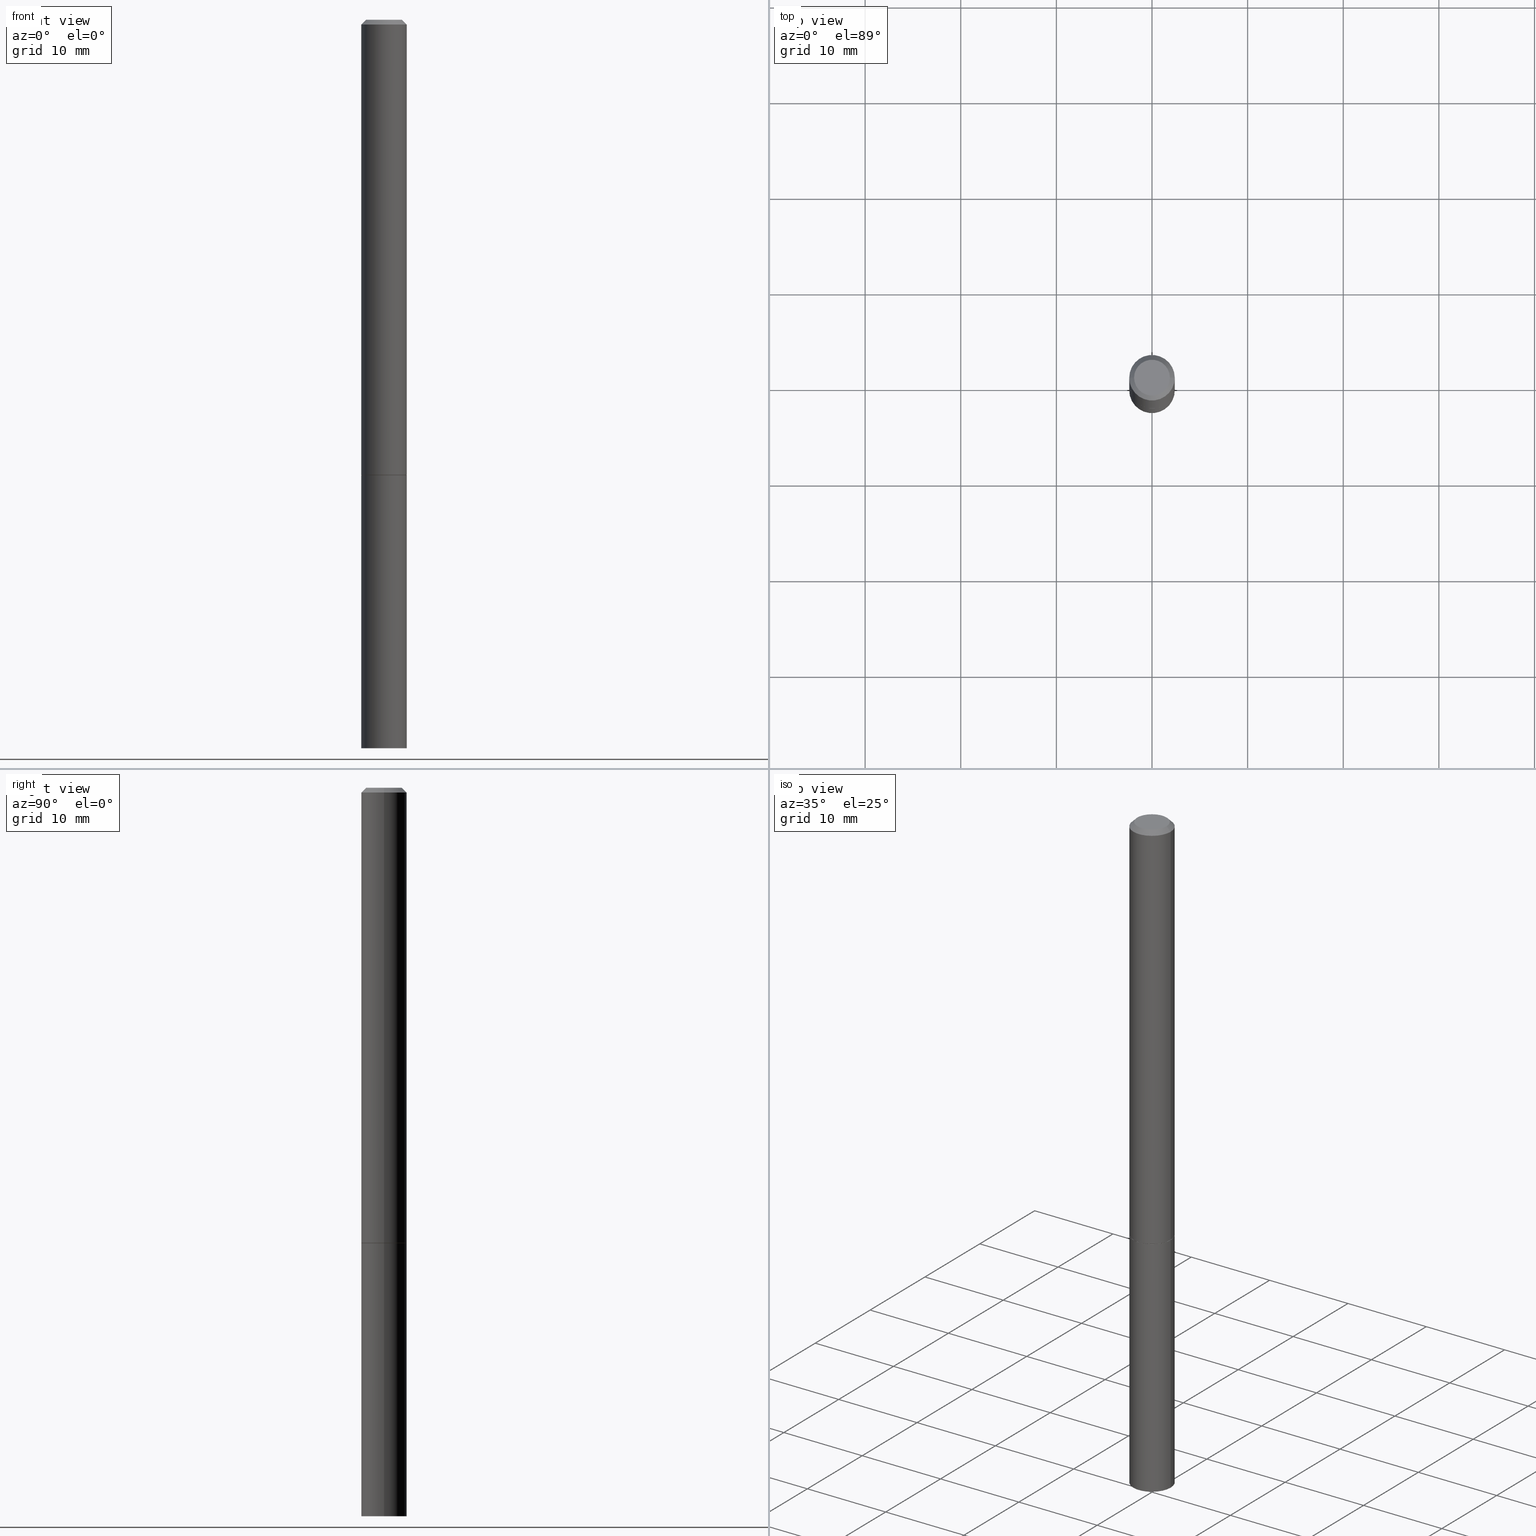
[diagram: canonical four-view strip — front | top / right | iso, engineering-drawing reading convention]
A machine part, canonical four-view strip (front | top / right | iso — engineering-drawing reading convention). The complete STEP part file that produces these views, byte-faithful:
ISO-10303-21;
HEADER;
FILE_DESCRIPTION (( 'STEP AP203' ),
    '1' );
FILE_NAME ('70473.STEP',
    '2024-02-29T02:29:18',
    ( '' ),
    ( '' ),
    'SwSTEP 2.0',
    'SolidWorks 2023',
    '' );
FILE_SCHEMA (( 'CONFIG_CONTROL_DESIGN' ));
ENDSEC;

DATA;
#1 = CARTESIAN_POINT ( 'NONE',  ( 4.890937612370274910E-31, -6.982962677686295307E-17, -0.02000000000000000736 ) ) ;
#2 = AXIS2_PLACEMENT_3D ( 'NONE', #209, #179, #328 ) ;
#3 = CARTESIAN_POINT ( 'NONE',  ( 0.000000000000000000, 0.000000000000000000, 0.000000000000000000 ) ) ;
#4 = CARTESIAN_POINT ( 'NONE',  ( 0.09274999999999998523, -7.194197298686297830E-15, -1.874999999999999778 ) ) ;
#5 = LINE ( 'NONE', #120, #324 ) ;
#6 = ORIENTED_EDGE ( 'NONE', *, *, #94, .T. ) ;
#7 = DATE_AND_TIME ( #190, #330 ) ;
#8 = PERSON ( 'UNSPECIFIED', 'UNSPECIFIED', 'UNSPECIFIED', ('UNSPECIFIED'), ('UNSPECIFIED'), ('UNSPECIFIED') ) ;
#9 = ORIENTED_EDGE ( 'NONE', *, *, #305, .F. ) ;
#10 = ORIENTED_EDGE ( 'NONE', *, *, #285, .F. ) ;
#11 = COORDINATED_UNIVERSAL_TIME_OFFSET ( 5, 0, .BEHIND. ) ;
#12 = ORIENTED_EDGE ( 'NONE', *, *, #60, .T. ) ;
#13 = PRODUCT ( '70473', '70473', '', ( #58 ) ) ;
#14 = VECTOR ( 'NONE', #228, 39.37007874015748143 ) ;
#15 = PRODUCT_RELATED_PRODUCT_CATEGORY ( 'detail', '', ( #13 ) ) ;
#16 = CARTESIAN_POINT ( 'NONE',  ( 4.585254011597131119E-29, -6.546527510330898707E-15, -1.875000000000000000 ) ) ;
#17 = DIRECTION ( 'NONE',  ( 1.000000000000000000, -6.982962677686265922E-15, 4.876176775795935793E-29 ) ) ;
#18 = CARTESIAN_POINT ( 'NONE',  ( 7.336406418555409790E-29, -1.047444401652943635E-14, -3.000000000000000444 ) ) ;
#19 = CIRCLE ( 'NONE', #196, 0.09375000000000001388 ) ;
#20 = CALENDAR_DATE ( 2024, 28, 2 ) ;
#21 =( LENGTH_UNIT ( ) NAMED_UNIT ( * ) SI_UNIT ( $, .METRE. ) );
#22 = DATE_AND_TIME ( #20, #256 ) ;
#23 = CALENDAR_DATE ( 2024, 28, 2 ) ;
#24 = CIRCLE ( 'NONE', #348, 0.09375000000000001388 ) ;
#25 = PRODUCT_DEFINITION_FORMATION_WITH_SPECIFIED_SOURCE ( 'ANY', '', #13, .NOT_KNOWN. ) ;
#26 = CARTESIAN_POINT ( 'NONE',  ( 4.582808542790945516E-29, -6.543036028992054911E-15, -1.874000000000000110 ) ) ;
#27 = COORDINATED_UNIVERSAL_TIME_OFFSET ( 5, 0, .BEHIND. ) ;
#28 = DIRECTION ( 'NONE',  ( -2.445468806185136597E-29, 3.491481338843145583E-15, 1.000000000000000000 ) ) ;
#29 = DIRECTION ( 'NONE',  ( 0.7071067811866259545, -2.468850131083078659E-15, 0.7071067811864690800 ) ) ;
#30 = AXIS2_PLACEMENT_3D ( 'NONE', #165, #198, #313 ) ;
#31 = DIRECTION ( 'NONE',  ( -2.445468806185136597E-29, 3.491481338843145583E-15, 1.000000000000000000 ) ) ;
#32 = CARTESIAN_POINT ( 'NONE',  ( -0.09375000000000001388, -7.844351948655072817E-15, -3.000000000000000444 ) ) ;
#33 = CC_DESIGN_PERSON_AND_ORGANIZATION_ASSIGNMENT ( #334, #249, ( #63 ) ) ;
#34 = ORIENTED_EDGE ( 'NONE', *, *, #178, .F. ) ;
#35 = PLANE ( 'NONE',  #242 ) ;
#36 = ORIENTED_EDGE ( 'NONE', *, *, #118, .F. ) ;
#37 = CIRCLE ( 'NONE', #272, 0.07374999999999982958 ) ;
#38 = ORIENTED_EDGE ( 'NONE', *, *, #178, .T. ) ;
#39 = DATE_AND_TIME ( #119, #338 ) ;
#40 = ORIENTED_EDGE ( 'NONE', *, *, #94, .F. ) ;
#41 = ADVANCED_FACE ( 'NONE', ( #358 ), #81, .F. ) ;
#42 = ORIENTED_EDGE ( 'NONE', *, *, #144, .F. ) ;
#43 = CC_DESIGN_APPROVAL ( #71, ( #25 ) ) ;
#44 = CARTESIAN_POINT ( 'NONE',  ( -0.09374999999999979183, 5.848231242562231212E-16, -0.02000000000000000736 ) ) ;
#45 = PERSON_AND_ORGANIZATION_ROLE ( 'creator' ) ;
#46 = CYLINDRICAL_SURFACE ( 'NONE', #265, 0.09375000000000001388 ) ;
#47 = APPROVAL_ROLE ( '' ) ;
#48 = DIRECTION ( 'NONE',  ( -2.445468806185136597E-29, 3.491481338843145583E-15, 1.000000000000000000 ) ) ;
#49 = PERSON_AND_ORGANIZATION ( #8, #85 ) ;
#50 = ORIENTED_EDGE ( 'NONE', *, *, #126, .F. ) ;
#51 = CONICAL_SURFACE ( 'NONE', #171, 0.09274999999999998523, 0.7853981633975591903 ) ;
#52 = PERSON_AND_ORGANIZATION ( #8, #85 ) ;
#53 = DIRECTION ( 'NONE',  ( 2.438088387897960049E-29, -3.491481338843145188E-15, -1.000000000000000000 ) ) ;
#54 = CARTESIAN_POINT ( 'NONE',  ( 4.585254011597130558E-29, -6.546527510330897918E-15, -1.874999999999999778 ) ) ;
#55 = APPROVAL_DATE_TIME ( #191, #71 ) ;
#56 = DIRECTION ( 'NONE',  ( 1.000000000000000000, -6.982962677686266711E-15, 4.875869617646596737E-29 ) ) ;
#57 = ADVANCED_FACE ( 'NONE', ( #276 ), #185, .F. ) ;
#58 = MECHANICAL_CONTEXT ( 'NONE', #166, 'mechanical' ) ;
#59 = LOCAL_TIME ( 21, 29, 18.00000000000000000, #90 ) ;
#60 = EDGE_CURVE ( 'NONE', #327, #332, #248, .T. ) ;
#61 = CARTESIAN_POINT ( 'NONE',  ( -1.043851414335219820E-46, 1.490343170380447200E-32, 4.268512490100411279E-18 ) ) ;
#62 = CIRCLE ( 'NONE', #161, 0.09375000000000001388 ) ;
#63 = SECURITY_CLASSIFICATION ( '', '', #273 ) ;
#64 = PRODUCT_DEFINITION ( 'UNKNOWN', '', #25, #195 ) ;
#65 = ORIENTED_EDGE ( 'NONE', *, *, #207, .F. ) ;
#66 = CYLINDRICAL_SURFACE ( 'NONE', #299, 0.09375000000000001388 ) ;
#67 = EDGE_LOOP ( 'NONE', ( #50, #262, #322, #34 ) ) ;
#68 = VERTEX_POINT ( 'NONE', #108 ) ;
#69 = PERSON_AND_ORGANIZATION ( #8, #85 ) ;
#70 = AXIS2_PLACEMENT_3D ( 'NONE', #172, #205, #139 ) ;
#71 = APPROVAL ( #175, 'UNSPECIFIED' ) ;
#72 = ORIENTED_EDGE ( 'NONE', *, *, #118, .T. ) ;
#73 = DIRECTION ( 'NONE',  ( -2.445468806185136597E-29, 3.491481338843145583E-15, 1.000000000000000000 ) ) ;
#74 = CIRCLE ( 'NONE', #270, 0.09375000000000001388 ) ;
#75 = PLANE ( 'NONE',  #96 ) ;
#76 = APPROVAL_ROLE ( '' ) ;
#77 = MANIFOLD_SOLID_BREP ( 'Body-Move/Copy2[1]', #297 ) ;
#78 = LINE ( 'NONE', #44, #240 ) ;
#79 = CARTESIAN_POINT ( 'NONE',  ( -0.09375000000000001388, -2.640299013109360447E-15, -1.874000000000000110 ) ) ;
#80 = PERSON_AND_ORGANIZATION_ROLE ( 'design_owner' ) ;
#81 = PLANE ( 'NONE',  #354 ) ;
#82 = ADVANCED_FACE ( 'NONE', ( #152 ), #51, .T. ) ;
#83 = CONICAL_SURFACE ( 'NONE', #102, 0.09274999999999998523, 0.7853981633975591903 ) ;
#84 = FACE_OUTER_BOUND ( 'NONE', #208, .T. ) ;
#85 = ORGANIZATION ( 'UNSPECIFIED', 'UNSPECIFIED', '' ) ;
#86 = DIRECTION ( 'NONE',  ( -1.000000000000000000, 6.982962677686266711E-15, 0.000000000000000000 ) ) ;
#87 = DIRECTION ( 'NONE',  ( 1.000000000000000000, -6.982962677686262766E-15, 0.000000000000000000 ) ) ;
#88 = CARTESIAN_POINT ( 'NONE',  ( 4.585254011597131119E-29, -6.546527510330898707E-15, -1.875000000000000000 ) ) ;
#89 = ORIENTED_EDGE ( 'NONE', *, *, #144, .T. ) ;
#90 = COORDINATED_UNIVERSAL_TIME_OFFSET ( 5, 0, .BEHIND. ) ;
#91 = LINE ( 'NONE', #103, #14 ) ;
#92 = ORIENTED_EDGE ( 'NONE', *, *, #233, .T. ) ;
#93 = EDGE_LOOP ( 'NONE', ( #261, #92, #89, #347 ) ) ;
#94 = EDGE_CURVE ( 'NONE', #99, #332, #78, .T. ) ;
#95 = EDGE_LOOP ( 'NONE', ( #177, #238, #36, #203 ) ) ;
#96 = AXIS2_PLACEMENT_3D ( 'NONE', #304, #53, #183 ) ;
#97 = AXIS2_PLACEMENT_3D ( 'NONE', #3, #28, #344 ) ;
#98 = ORIENTED_EDGE ( 'NONE', *, *, #247, .T. ) ;
#99 = VERTEX_POINT ( 'NONE', #210 ) ;
#100 = CC_DESIGN_DATE_AND_TIME_ASSIGNMENT ( #39, #227, ( #64 ) ) ;
#101 = DIRECTION ( 'NONE',  ( 1.000000000000000000, -6.982962677686262766E-15, 0.000000000000000000 ) ) ;
#102 = AXIS2_PLACEMENT_3D ( 'NONE', #54, #157, #137 ) ;
#103 = CARTESIAN_POINT ( 'NONE',  ( 0.09375000000000001388, -6.546527510330875041E-16, 4.571415727308690506E-30 ) ) ;
#104 = PERSON_AND_ORGANIZATION ( #8, #85 ) ;
#105 = ORIENTED_EDGE ( 'NONE', *, *, #192, .T. ) ;
#106 = DIRECTION ( 'NONE',  ( 1.000000000000000000, -6.982962677686261189E-15, 0.000000000000000000 ) ) ;
#107 = DATE_TIME_ROLE ( 'classification_date' ) ;
#108 = CARTESIAN_POINT ( 'NONE',  ( -0.09274999999999998523, -5.882200668565182600E-15, -1.874999999999999778 ) ) ;
#109 = DIRECTION ( 'NONE',  ( -2.445468806185136597E-29, 3.491481338843145583E-15, 1.000000000000000000 ) ) ;
#110 = ADVANCED_FACE ( 'NONE', ( #329 ), #75, .T. ) ;
#111 = VERTEX_POINT ( 'NONE', #301 ) ;
#112 = DIRECTION ( 'NONE',  ( -2.445468806185136877E-29, 3.491481338843145188E-15, 1.000000000000000000 ) ) ;
#113 = CIRCLE ( 'NONE', #316, 0.09375000000000001388 ) ;
#114 = PERSON_AND_ORGANIZATION_ROLE ( 'design_supplier' ) ;
#115 = AXIS2_PLACEMENT_3D ( 'NONE', #302, #73, #155 ) ;
#116 = CARTESIAN_POINT ( 'NONE',  ( -0.09374999999999988898, 6.661338147750931354E-16, -4.611501647113968390E-30 ) ) ;
#117 = APPROVAL_PERSON_ORGANIZATION ( #104, #71, #76 ) ;
#118 = EDGE_CURVE ( 'NONE', #362, #174, #24, .T. ) ;
#119 = CALENDAR_DATE ( 2024, 28, 2 ) ;
#120 = CARTESIAN_POINT ( 'NONE',  ( -0.09274999999999998523, -5.887499122913405002E-15, -1.874999999999999778 ) ) ;
#121 = DIRECTION ( 'NONE',  ( -2.445468806185136597E-29, 3.491481338843145583E-15, 1.000000000000000000 ) ) ;
#122 = DIRECTION ( 'NONE',  ( 1.000000000000000000, -6.982962677686265922E-15, 4.876176775795935793E-29 ) ) ;
#123 = ORIENTED_EDGE ( 'NONE', *, *, #285, .T. ) ;
#124 = CARTESIAN_POINT ( 'NONE',  ( -0.09375000000000001388, 6.661338147750940229E-16, -4.611501647113973995E-30 ) ) ;
#125 = EDGE_LOOP ( 'NONE', ( #105, #132 ) ) ;
#126 = EDGE_CURVE ( 'NONE', #319, #174, #253, .T. ) ;
#127 = ORIENTED_EDGE ( 'NONE', *, *, #207, .T. ) ;
#128 = ORIENTED_EDGE ( 'NONE', *, *, #257, .F. ) ;
#129 = CIRCLE ( 'NONE', #317, 0.09274999999999998523 ) ;
#130 = CC_DESIGN_PERSON_AND_ORGANIZATION_ASSIGNMENT ( #277, #80, ( #13 ) ) ;
#131 = PERSON_AND_ORGANIZATION ( #8, #85 ) ;
#132 = ORIENTED_EDGE ( 'NONE', *, *, #274, .T. ) ;
#133 = CIRCLE ( 'NONE', #342, 0.09375000000000001388 ) ;
#134 = UNCERTAINTY_MEASURE_WITH_UNIT (LENGTH_MEASURE( 1.000000000000000082E-05 ), #216, 'distance_accuracy_value', 'NONE');
#135 = EDGE_CURVE ( 'NONE', #332, #327, #234, .T. ) ;
#136 = PERSON_AND_ORGANIZATION_ROLE ( 'creator' ) ;
#137 = DIRECTION ( 'NONE',  ( 1.000000000000000000, -6.982962677686262766E-15, 0.000000000000000000 ) ) ;
#138 = APPROVAL_DATE_TIME ( #303, #266 ) ;
#139 = DIRECTION ( 'NONE',  ( 1.000000000000000000, -6.982962677686266711E-15, 0.000000000000000000 ) ) ;
#140 = AXIS2_PLACEMENT_3D ( 'NONE', #353, #48, #331 ) ;
#141 = AXIS2_PLACEMENT_3D ( 'NONE', #201, #315, #258 ) ;
#142 = DIRECTION ( 'NONE',  ( -2.445468806185136597E-29, 3.491481338843145583E-15, 1.000000000000000000 ) ) ;
#143 = CARTESIAN_POINT ( 'NONE',  ( 0.09375000000000001388, -7.201180261363985422E-15, -1.875000000000000000 ) ) ;
#144 = EDGE_CURVE ( 'NONE', #206, #327, #200, .T. ) ;
#145 = PRODUCT_DEFINITION_SHAPE ( 'NONE', 'NONE',  #64 ) ;
#146 = CYLINDRICAL_SURFACE ( 'NONE', #97, 0.09374999999999988898 ) ;
#147 = DIRECTION ( 'NONE',  ( -2.438088387897960049E-29, 3.491481338843145188E-15, 1.000000000000000000 ) ) ;
#148 = EDGE_LOOP ( 'NONE', ( #295, #230 ) ) ;
#149 = EDGE_LOOP ( 'NONE', ( #9, #123, #267, #318 ) ) ;
#150 = ORIENTED_EDGE ( 'NONE', *, *, #365, .T. ) ;
#151 = EDGE_CURVE ( 'NONE', #337, #362, #91, .T. ) ;
#152 = FACE_OUTER_BOUND ( 'NONE', #149, .T. ) ;
#153 = COORDINATED_UNIVERSAL_TIME_OFFSET ( 5, 0, .BEHIND. ) ;
#154 = LINE ( 'NONE', #250, #289 ) ;
#155 = DIRECTION ( 'NONE',  ( 1.000000000000000000, -6.982962677686266711E-15, 0.000000000000000000 ) ) ;
#156 = CC_DESIGN_PERSON_AND_ORGANIZATION_ASSIGNMENT ( #49, #136, ( #25 ) ) ;
#157 = DIRECTION ( 'NONE',  ( -2.445468806185136597E-29, 3.491481338843145583E-15, 1.000000000000000000 ) ) ;
#158 = PERSON_AND_ORGANIZATION ( #8, #85 ) ;
#159 = DIRECTION ( 'NONE',  ( -1.000000000000000000, 6.982962677686265922E-15, -4.876176775795935793E-29 ) ) ;
#160 = EDGE_CURVE ( 'NONE', #337, #319, #19, .T. ) ;
#161 = AXIS2_PLACEMENT_3D ( 'NONE', #168, #31, #225 ) ;
#162 = APPROVAL_PERSON_ORGANIZATION ( #131, #360, #47 ) ;
#163 = SHAPE_DEFINITION_REPRESENTATION ( #145, #294 ) ;
#164 = DIRECTION ( 'NONE',  ( -2.445468806185136597E-29, 3.491481338843145583E-15, 1.000000000000000000 ) ) ;
#165 = CARTESIAN_POINT ( 'NONE',  ( 4.890937612370274910E-31, -6.982962677686295307E-17, -0.02000000000000000736 ) ) ;
#166 = APPLICATION_CONTEXT ( 'configuration controlled 3d designs of mechanical parts and assemblies' ) ;
#167 = ADVANCED_FACE ( 'NONE', ( #281 ), #180, .T. ) ;
#168 = CARTESIAN_POINT ( 'NONE',  ( 4.585254011597131119E-29, -6.546527510330898707E-15, -1.875000000000000000 ) ) ;
#169 = CARTESIAN_POINT ( 'NONE',  ( -0.09374999999999979183, 5.848231242562231212E-16, -0.02000000000000000736 ) ) ;
#170 = DIMENSIONAL_EXPONENTS ( 1.000000000000000000, 0.000000000000000000, 0.000000000000000000, 0.000000000000000000, 0.000000000000000000, 0.000000000000000000, 0.000000000000000000 ) ;
#171 = AXIS2_PLACEMENT_3D ( 'NONE', #335, #298, #101 ) ;
#172 = CARTESIAN_POINT ( 'NONE',  ( 4.890937612370274910E-31, -6.982962677686295307E-17, -0.02000000000000000736 ) ) ;
#173 = EDGE_LOOP ( 'NONE', ( #232, #235, #65, #128 ) ) ;
#174 = VERTEX_POINT ( 'NONE', #343 ) ;
#175 = APPROVAL_STATUS ( 'not_yet_approved' ) ;
#176 = VECTOR ( 'NONE', #29, 39.37007874015748143 ) ;
#177 = ORIENTED_EDGE ( 'NONE', *, *, #160, .T. ) ;
#178 = EDGE_CURVE ( 'NONE', #174, #362, #62, .T. ) ;
#179 = DIRECTION ( 'NONE',  ( 2.438088387897960049E-29, -3.491481338843145188E-15, -1.000000000000000000 ) ) ;
#180 = CONICAL_SURFACE ( 'NONE', #211, 0.09374999999999979183, 0.7853981633974469467 ) ;
#181 = AXIS2_PLACEMENT_3D ( 'NONE', #246, #213, #364 ) ;
#182 = APPLICATION_PROTOCOL_DEFINITION ( 'international standard', 'config_control_design', 1994, #186 ) ;
#183 = DIRECTION ( 'NONE',  ( -1.000000000000000000, 6.982962677686265922E-15, -4.876176775795935793E-29 ) ) ;
#184 =( NAMED_UNIT ( * ) SI_UNIT ( $, .STERADIAN. ) SOLID_ANGLE_UNIT ( ) );
#185 = PLANE ( 'NONE',  #2 ) ;
#186 = APPLICATION_CONTEXT ( 'configuration controlled 3d designs of mechanical parts and assemblies' ) ;
#187 = DIRECTION ( 'NONE',  ( -0.7071067811865465735, 2.468850131082246805E-15, -0.7071067811865484609 ) ) ;
#188 = FACE_OUTER_BOUND ( 'NONE', #95, .T. ) ;
#189 = VECTOR ( 'NONE', #197, 39.37007874015748143 ) ;
#190 = CALENDAR_DATE ( 2024, 28, 2 ) ;
#191 = DATE_AND_TIME ( #366, #59 ) ;
#192 = EDGE_CURVE ( 'NONE', #99, #350, #222, .T. ) ;
#193 = APPLICATION_PROTOCOL_DEFINITION ( 'international standard', 'config_control_design', 1994, #166 ) ;
#194 = MANIFOLD_SOLID_BREP ( 'Body-Move/Copy2[2]', #323 ) ;
#195 = DESIGN_CONTEXT ( 'detailed design', #186, 'design' ) ;
#196 = AXIS2_PLACEMENT_3D ( 'NONE', #278, #121, #269 ) ;
#197 = DIRECTION ( 'NONE',  ( -2.445468806185136877E-29, 3.491481338843145188E-15, 1.000000000000000000 ) ) ;
#198 = DIRECTION ( 'NONE',  ( 2.445468806185136597E-29, -3.491481338843145583E-15, -1.000000000000000000 ) ) ;
#199 = ADVANCED_FACE ( 'NONE', ( #188 ), #46, .T. ) ;
#200 = LINE ( 'NONE', #293, #189 ) ;
#201 = CARTESIAN_POINT ( 'NONE',  ( 4.585254011597130558E-29, -6.546527510330897918E-15, -1.874999999999999778 ) ) ;
#202 = CC_DESIGN_APPROVAL ( #360, ( #64 ) ) ;
#203 = ORIENTED_EDGE ( 'NONE', *, *, #151, .F. ) ;
#204 = ORIENTED_EDGE ( 'NONE', *, *, #135, .T. ) ;
#205 = DIRECTION ( 'NONE',  ( -2.445468806185136597E-29, 3.491481338843145583E-15, 1.000000000000000000 ) ) ;
#206 = VERTEX_POINT ( 'NONE', #241 ) ;
#207 = EDGE_CURVE ( 'NONE', #206, #218, #113, .T. ) ;
#208 = EDGE_LOOP ( 'NONE', ( #264, #326, #6, #204 ) ) ;
#209 = CARTESIAN_POINT ( 'NONE',  ( 5.149934974793609077E-16, 0.07374999999999982958, -2.553624924946311773E-16 ) ) ;
#210 = CARTESIAN_POINT ( 'NONE',  ( -0.07374999999999982958, 5.499083108677920638E-16, 4.268512490096688071E-18 ) ) ;
#211 = AXIS2_PLACEMENT_3D ( 'NONE', #1, #279, #86 ) ;
#212 = LOCAL_TIME ( 21, 29, 18.00000000000000000, #275 ) ;
#213 = DIRECTION ( 'NONE',  ( 0.000000000000000000, 0.000000000000000000, 1.000000000000000000 ) ) ;
#214 = DIRECTION ( 'NONE',  ( 1.000000000000000000, -6.982962677686261189E-15, 0.000000000000000000 ) ) ;
#215 = CARTESIAN_POINT ( 'NONE',  ( 4.582808542790945516E-29, -6.543036028992054911E-15, -1.874000000000000110 ) ) ;
#216 =( CONVERSION_BASED_UNIT ( 'INCH', #308 ) LENGTH_UNIT ( ) NAMED_UNIT ( #170 ) );
#217 = APPROVAL_ROLE ( '' ) ;
#218 = VERTEX_POINT ( 'NONE', #79 ) ;
#219 = ADVANCED_FACE ( 'NONE', ( #307 ), #83, .T. ) ;
#220 = CARTESIAN_POINT ( 'NONE',  ( 0.000000000000000000, 0.000000000000000000, 0.000000000000000000 ) ) ;
#221 = ADVANCED_FACE ( 'NONE', ( #245 ), #231, .T. ) ;
#222 = CIRCLE ( 'NONE', #229, 0.07374999999999982958 ) ;
#223 = CIRCLE ( 'NONE', #141, 0.09274999999999998523 ) ;
#224 = DIRECTION ( 'NONE',  ( -2.445468806185136877E-29, 3.491481338843145188E-15, 1.000000000000000000 ) ) ;
#225 = DIRECTION ( 'NONE',  ( 1.000000000000000000, -6.982962677686261189E-15, 0.000000000000000000 ) ) ;
#226 = ORIENTED_EDGE ( 'NONE', *, *, #60, .F. ) ;
#227 = DATE_TIME_ROLE ( 'creation_date' ) ;
#228 = DIRECTION ( 'NONE',  ( -2.445468806185136877E-29, 3.491481338843145188E-15, 1.000000000000000000 ) ) ;
#229 = AXIS2_PLACEMENT_3D ( 'NONE', #321, #363, #56 ) ;
#230 = ORIENTED_EDGE ( 'NONE', *, *, #251, .F. ) ;
#231 = CYLINDRICAL_SURFACE ( 'NONE', #140, 0.09374999999999988898 ) ;
#232 = ORIENTED_EDGE ( 'NONE', *, *, #296, .T. ) ;
#233 = EDGE_CURVE ( 'NONE', #218, #206, #74, .T. ) ;
#234 = CIRCLE ( 'NONE', #70, 0.09374999999999979183 ) ;
#235 = ORIENTED_EDGE ( 'NONE', *, *, #305, .T. ) ;
#236 = CC_DESIGN_SECURITY_CLASSIFICATION ( #63, ( #25 ) ) ;
#237 =( NAMED_UNIT ( * ) PLANE_ANGLE_UNIT ( ) SI_UNIT ( $, .RADIAN. ) );
#238 = ORIENTED_EDGE ( 'NONE', *, *, #126, .T. ) ;
#239 = DIRECTION ( 'NONE',  ( -2.445468806185136597E-29, 3.491481338843145583E-15, 1.000000000000000000 ) ) ;
#240 = VECTOR ( 'NONE', #187, 39.37007874015748143 ) ;
#241 = CARTESIAN_POINT ( 'NONE',  ( 0.09375000000000001388, -7.197688780025142415E-15, -1.874000000000000110 ) ) ;
#242 = AXIS2_PLACEMENT_3D ( 'NONE', #88, #147, #260 ) ;
#243 = DIRECTION ( 'NONE',  ( -2.445468806185136597E-29, 3.491481338843145583E-15, 1.000000000000000000 ) ) ;
#244 = APPROVAL_STATUS ( 'not_yet_approved' ) ;
#245 = FACE_OUTER_BOUND ( 'NONE', #93, .T. ) ;
#246 = CARTESIAN_POINT ( 'NONE',  ( 0.000000000000000000, 0.000000000000000000, 0.000000000000000000 ) ) ;
#247 = EDGE_CURVE ( 'NONE', #350, #327, #154, .T. ) ;
#248 = CIRCLE ( 'NONE', #115, 0.09374999999999979183 ) ;
#249 = PERSON_AND_ORGANIZATION_ROLE ( 'classification_officer' ) ;
#250 = CARTESIAN_POINT ( 'NONE',  ( 0.09374999999999979183, -7.130013140679426072E-16, -0.02000000000000000736 ) ) ;
#251 = EDGE_CURVE ( 'NONE', #319, #337, #133, .T. ) ;
#252 = CARTESIAN_POINT ( 'NONE',  ( 4.585254011597130558E-29, -6.546527510330897918E-15, -1.874999999999999778 ) ) ;
#253 = LINE ( 'NONE', #124, #310 ) ;
#254 = LINE ( 'NONE', #116, #349 ) ;
#255 = DIRECTION ( 'NONE',  ( 1.000000000000000000, -6.982962677686266711E-15, 4.875869617646596737E-29 ) ) ;
#256 = LOCAL_TIME ( 21, 29, 18.00000000000000000, #27 ) ;
#257 = EDGE_CURVE ( 'NONE', #111, #206, #282, .T. ) ;
#258 = DIRECTION ( 'NONE',  ( 1.000000000000000000, -6.982962677686262766E-15, 0.000000000000000000 ) ) ;
#259 = DIRECTION ( 'NONE',  ( -2.445468806185136597E-29, 3.491481338843145583E-15, 1.000000000000000000 ) ) ;
#260 = DIRECTION ( 'NONE',  ( 1.000000000000000000, -6.982962677686265922E-15, 4.876176775795935793E-29 ) ) ;
#261 = ORIENTED_EDGE ( 'NONE', *, *, #365, .F. ) ;
#262 = ORIENTED_EDGE ( 'NONE', *, *, #251, .T. ) ;
#263 = ADVANCED_FACE ( 'NONE', ( #311 ), #146, .T. ) ;
#264 = ORIENTED_EDGE ( 'NONE', *, *, #247, .F. ) ;
#265 = AXIS2_PLACEMENT_3D ( 'NONE', #271, #109, #17 ) ;
#266 = APPROVAL ( #244, 'UNSPECIFIED' ) ;
#267 = ORIENTED_EDGE ( 'NONE', *, *, #257, .T. ) ;
#268 = DIRECTION ( 'NONE',  ( 0.7071067811865465735, -7.319954787623252890E-15, -0.7071067811865484609 ) ) ;
#269 = DIRECTION ( 'NONE',  ( 1.000000000000000000, -6.982962677686261189E-15, 0.000000000000000000 ) ) ;
#270 = AXIS2_PLACEMENT_3D ( 'NONE', #26, #142, #106 ) ;
#271 = CARTESIAN_POINT ( 'NONE',  ( 0.000000000000000000, 0.000000000000000000, 0.000000000000000000 ) ) ;
#272 = AXIS2_PLACEMENT_3D ( 'NONE', #61, #164, #255 ) ;
#273 = SECURITY_CLASSIFICATION_LEVEL ( 'unclassified' ) ;
#274 = EDGE_CURVE ( 'NONE', #350, #99, #37, .T. ) ;
#275 = COORDINATED_UNIVERSAL_TIME_OFFSET ( 5, 0, .BEHIND. ) ;
#276 = FACE_OUTER_BOUND ( 'NONE', #125, .T. ) ;
#277 = PERSON_AND_ORGANIZATION ( #8, #85 ) ;
#278 = CARTESIAN_POINT ( 'NONE',  ( 7.336406418555409790E-29, -1.047444401652943635E-14, -3.000000000000000444 ) ) ;
#279 = DIRECTION ( 'NONE',  ( 2.445468806185136597E-29, -3.491481338843145583E-15, -1.000000000000000000 ) ) ;
#280 = DIRECTION ( 'NONE',  ( -0.7071067811866259545, 7.493145998870638150E-15, 0.7071067811864690800 ) ) ;
#281 = FACE_OUTER_BOUND ( 'NONE', #352, .T. ) ;
#282 = LINE ( 'NONE', #4, #176 ) ;
#283 = FACE_OUTER_BOUND ( 'NONE', #361, .T. ) ;
#284 = FACE_OUTER_BOUND ( 'NONE', #67, .T. ) ;
#285 = EDGE_CURVE ( 'NONE', #68, #111, #129, .T. ) ;
#286 = EDGE_LOOP ( 'NONE', ( #127, #150, #226, #42 ) ) ;
#287 = CARTESIAN_POINT ( 'NONE',  ( 0.09375000000000001388, -1.112909676756252465E-14, -3.000000000000000444 ) ) ;
#288 = ORIENTED_EDGE ( 'NONE', *, *, #296, .F. ) ;
#289 = VECTOR ( 'NONE', #268, 39.37007874015748143 ) ;
#290 = APPROVAL_PERSON_ORGANIZATION ( #158, #266, #217 ) ;
#291 = CC_DESIGN_PERSON_AND_ORGANIZATION_ASSIGNMENT ( #69, #45, ( #64 ) ) ;
#292 = EDGE_LOOP ( 'NONE', ( #72, #38 ) ) ;
#293 = CARTESIAN_POINT ( 'NONE',  ( 0.09374999999999988898, -6.546527510330866166E-16, 4.571415727308684201E-30 ) ) ;
#294 = ADVANCED_BREP_SHAPE_REPRESENTATION ( '70473', ( #77, #194, #181 ), #312 ) ;
#295 = ORIENTED_EDGE ( 'NONE', *, *, #160, .F. ) ;
#296 = EDGE_CURVE ( 'NONE', #111, #68, #223, .T. ) ;
#297 = CLOSED_SHELL ( 'NONE', ( #199, #110, #41, #333 ) ) ;
#298 = DIRECTION ( 'NONE',  ( -2.445468806185136597E-29, 3.491481338843145583E-15, 1.000000000000000000 ) ) ;
#299 = AXIS2_PLACEMENT_3D ( 'NONE', #220, #259, #122 ) ;
#300 = APPROVAL_STATUS ( 'not_yet_approved' ) ;
#301 = CARTESIAN_POINT ( 'NONE',  ( 0.09274999999999998523, -7.194197298686297830E-15, -1.874999999999999778 ) ) ;
#302 = CARTESIAN_POINT ( 'NONE',  ( 4.890937612370274910E-31, -6.982962677686295307E-17, -0.02000000000000000736 ) ) ;
#303 = DATE_AND_TIME ( #23, #212 ) ;
#304 = CARTESIAN_POINT ( 'NONE',  ( 6.546527510331608682E-16, 0.09374999999998953615, -3.000000000000000888 ) ) ;
#305 = EDGE_CURVE ( 'NONE', #68, #218, #5, .T. ) ;
#306 = CC_DESIGN_APPROVAL ( #266, ( #63 ) ) ;
#307 = FACE_OUTER_BOUND ( 'NONE', #173, .T. ) ;
#308 = LENGTH_MEASURE_WITH_UNIT ( LENGTH_MEASURE( 0.02539999999999999897 ), #21 );
#309 = CARTESIAN_POINT ( 'NONE',  ( 6.546527510331333567E-16, 0.09374999999999346356, -1.875000000000000444 ) ) ;
#310 = VECTOR ( 'NONE', #112, 39.37007874015748143 ) ;
#311 = FACE_OUTER_BOUND ( 'NONE', #286, .T. ) ;
#312 =( GEOMETRIC_REPRESENTATION_CONTEXT ( 3 ) GLOBAL_UNCERTAINTY_ASSIGNED_CONTEXT ( ( #134 ) ) GLOBAL_UNIT_ASSIGNED_CONTEXT ( ( #216, #237, #184 ) ) REPRESENTATION_CONTEXT ( 'NONE', 'WORKASPACE' ) );
#313 = DIRECTION ( 'NONE',  ( -1.000000000000000000, 6.982962677686266711E-15, 0.000000000000000000 ) ) ;
#314 = CARTESIAN_POINT ( 'NONE',  ( 0.09374999999999979183, -7.130013140679426072E-16, -0.02000000000000000736 ) ) ;
#315 = DIRECTION ( 'NONE',  ( -2.445468806185136597E-29, 3.491481338843145583E-15, 1.000000000000000000 ) ) ;
#316 = AXIS2_PLACEMENT_3D ( 'NONE', #215, #336, #339 ) ;
#317 = AXIS2_PLACEMENT_3D ( 'NONE', #252, #346, #87 ) ;
#318 = ORIENTED_EDGE ( 'NONE', *, *, #233, .F. ) ;
#319 = VERTEX_POINT ( 'NONE', #32 ) ;
#320 = APPROVAL_DATE_TIME ( #7, #360 ) ;
#321 = CARTESIAN_POINT ( 'NONE',  ( -1.043851414335219820E-46, 1.490343170380447200E-32, 4.268512490100411279E-18 ) ) ;
#322 = ORIENTED_EDGE ( 'NONE', *, *, #151, .T. ) ;
#323 = CLOSED_SHELL ( 'NONE', ( #219, #263, #167, #356, #221, #82, #351, #57 ) ) ;
#324 = VECTOR ( 'NONE', #280, 39.37007874015748143 ) ;
#325 = CONICAL_SURFACE ( 'NONE', #30, 0.09374999999999979183, 0.7853981633974469467 ) ;
#326 = ORIENTED_EDGE ( 'NONE', *, *, #192, .F. ) ;
#327 = VERTEX_POINT ( 'NONE', #314 ) ;
#328 = DIRECTION ( 'NONE',  ( -1.000000000000000000, 6.982962677686265922E-15, -4.876176775795935793E-29 ) ) ;
#329 = FACE_OUTER_BOUND ( 'NONE', #148, .T. ) ;
#330 = LOCAL_TIME ( 21, 29, 18.00000000000000000, #153 ) ;
#331 = DIRECTION ( 'NONE',  ( 1.000000000000000000, -6.982962677686265133E-15, 4.876176775795935793E-29 ) ) ;
#332 = VERTEX_POINT ( 'NONE', #169 ) ;
#333 = ADVANCED_FACE ( 'NONE', ( #284 ), #66, .T. ) ;
#334 = PERSON_AND_ORGANIZATION ( #8, #85 ) ;
#335 = CARTESIAN_POINT ( 'NONE',  ( 4.585254011597130558E-29, -6.546527510330897918E-15, -1.874999999999999778 ) ) ;
#336 = DIRECTION ( 'NONE',  ( -2.445468806185136597E-29, 3.491481338843145583E-15, 1.000000000000000000 ) ) ;
#337 = VERTEX_POINT ( 'NONE', #287 ) ;
#338 = LOCAL_TIME ( 21, 29, 18.00000000000000000, #11 ) ;
#339 = DIRECTION ( 'NONE',  ( 1.000000000000000000, -6.982962677686261189E-15, 0.000000000000000000 ) ) ;
#340 = CC_DESIGN_DATE_AND_TIME_ASSIGNMENT ( #22, #107, ( #63 ) ) ;
#341 = CARTESIAN_POINT ( 'NONE',  ( 0.07374999999999982958, -6.094815207017959226E-16, 4.268512490104342487E-18 ) ) ;
#342 = AXIS2_PLACEMENT_3D ( 'NONE', #18, #243, #214 ) ;
#343 = CARTESIAN_POINT ( 'NONE',  ( -0.09375000000000001388, -7.844351948655072817E-15, -1.875000000000000000 ) ) ;
#344 = DIRECTION ( 'NONE',  ( 1.000000000000000000, -6.982962677686265133E-15, 4.876176775795935793E-29 ) ) ;
#345 = CC_DESIGN_PERSON_AND_ORGANIZATION_ASSIGNMENT ( #52, #114, ( #25 ) ) ;
#346 = DIRECTION ( 'NONE',  ( -2.445468806185136597E-29, 3.491481338843145583E-15, 1.000000000000000000 ) ) ;
#347 = ORIENTED_EDGE ( 'NONE', *, *, #135, .F. ) ;
#348 = AXIS2_PLACEMENT_3D ( 'NONE', #16, #239, #359 ) ;
#349 = VECTOR ( 'NONE', #224, 39.37007874015748143 ) ;
#350 = VERTEX_POINT ( 'NONE', #341 ) ;
#351 = ADVANCED_FACE ( 'NONE', ( #283 ), #35, .F. ) ;
#352 = EDGE_LOOP ( 'NONE', ( #355, #98, #12, #40 ) ) ;
#353 = CARTESIAN_POINT ( 'NONE',  ( 0.000000000000000000, 0.000000000000000000, 0.000000000000000000 ) ) ;
#354 = AXIS2_PLACEMENT_3D ( 'NONE', #309, #357, #159 ) ;
#355 = ORIENTED_EDGE ( 'NONE', *, *, #274, .F. ) ;
#356 = ADVANCED_FACE ( 'NONE', ( #84 ), #325, .T. ) ;
#357 = DIRECTION ( 'NONE',  ( 2.438088387897960049E-29, -3.491481338843145188E-15, -1.000000000000000000 ) ) ;
#358 = FACE_OUTER_BOUND ( 'NONE', #292, .T. ) ;
#359 = DIRECTION ( 'NONE',  ( 1.000000000000000000, -6.982962677686261189E-15, 0.000000000000000000 ) ) ;
#360 = APPROVAL ( #300, 'UNSPECIFIED' ) ;
#361 = EDGE_LOOP ( 'NONE', ( #288, #10 ) ) ;
#362 = VERTEX_POINT ( 'NONE', #143 ) ;
#363 = DIRECTION ( 'NONE',  ( -2.445468806185136597E-29, 3.491481338843145583E-15, 1.000000000000000000 ) ) ;
#364 = DIRECTION ( 'NONE',  ( 1.000000000000000000, 0.000000000000000000, 0.000000000000000000 ) ) ;
#365 = EDGE_CURVE ( 'NONE', #218, #332, #254, .T. ) ;
#366 = CALENDAR_DATE ( 2024, 28, 2 ) ;
ENDSEC;
END-ISO-10303-21;
